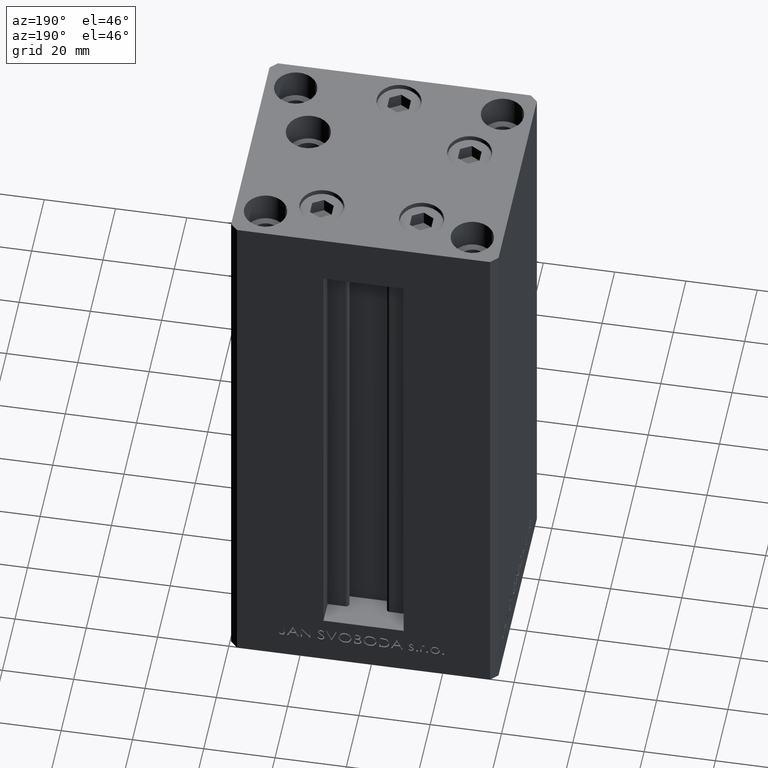
[diagram: clean part render]
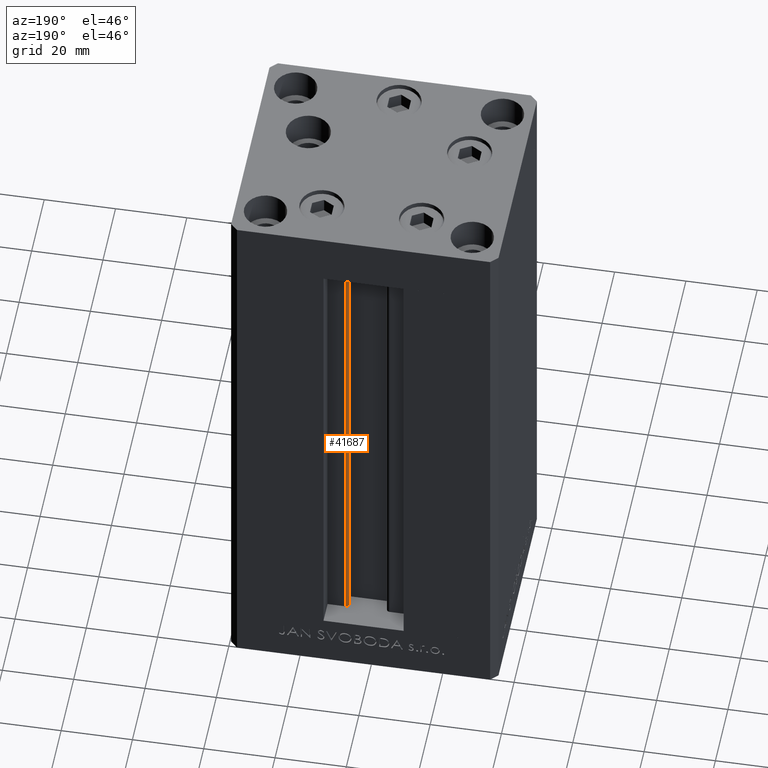
[diagram: same view with one face highlighted and labeled with its STEP entity id]
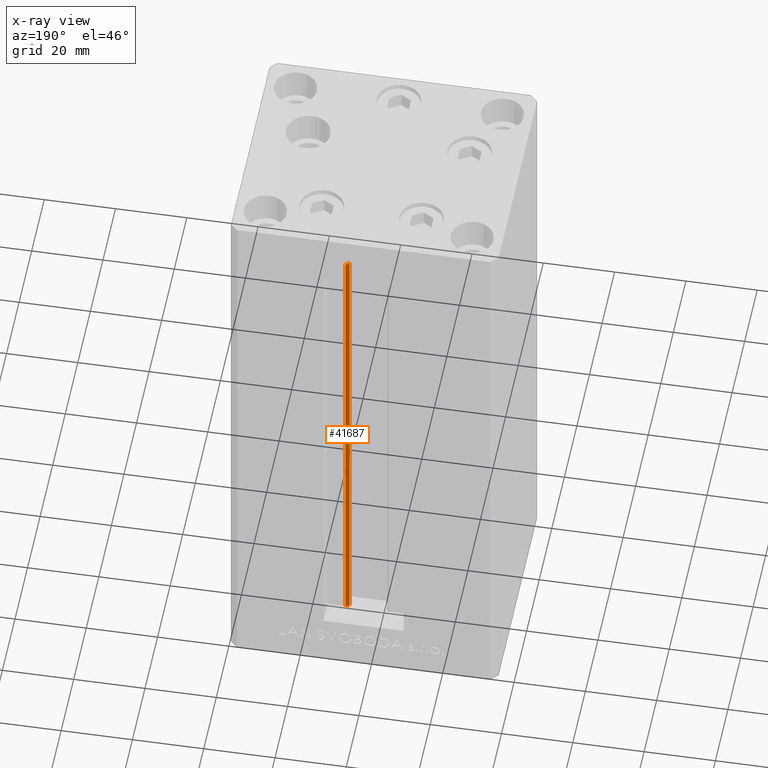
[diagram: x-ray of the same camera — body ghosted, the highlighted face saturated]
A machine part, auxiliary view. The second image highlights one B-rep face of the part: STEP entity #41687.
The next image is the same camera in x-ray: the body ghosted, the highlighted face saturated — about 0% of this face is hidden behind the body in this view.
In plain terms, the highlighted cylindrical surface (edge-blend (fillet) strip) has radius 0.9333 mm, axis along (0, 0, 1).
Its self-contained STEP definition (entity closure, byte-faithful):
#181 = DIRECTION ( 'NONE',  ( 1.000000000000000000, 0.000000000000000000, 0.000000000000000000 ) ) ;
#929 = CARTESIAN_POINT ( 'NONE',  ( 6.183333333334001480, 25.06666666666599141, 0.000000000000000000 ) ) ;
#1705 = EDGE_CURVE ( 'NONE', #24963, #31320, #23195, .T. ) ;
#3479 = AXIS2_PLACEMENT_3D ( 'NONE', #14260, #29382, #181 ) ;
#3924 = DIRECTION ( 'NONE',  ( -0.000000000000000000, -0.000000000000000000, -1.000000000000000000 ) ) ;
#5920 = EDGE_CURVE ( 'NONE', #19419, #24963, #43174, .T. ) ;
#7465 = EDGE_CURVE ( 'NONE', #19419, #38154, #41423, .T. ) ;
#8309 = ORIENTED_EDGE ( 'NONE', *, *, #1705, .T. ) ;
#11741 = AXIS2_PLACEMENT_3D ( 'NONE', #17107, #24069, #35210 ) ;
#13725 = ORIENTED_EDGE ( 'NONE', *, *, #31118, .F. ) ;
#14260 = CARTESIAN_POINT ( 'NONE',  ( 6.183333333334001480, 25.06666666666599141, 136.0000000000000000 ) ) ;
#14359 = VECTOR ( 'NONE', #36769, 1000.000000000000000 ) ;
#16074 = AXIS2_PLACEMENT_3D ( 'NONE', #929, #3924, #45483 ) ;
#17107 = CARTESIAN_POINT ( 'NONE',  ( 6.183333333334001480, 25.06666666666599141, 0.000000000000000000 ) ) ;
#19419 = VERTEX_POINT ( 'NONE', #43154 ) ;
#20869 = CARTESIAN_POINT ( 'NONE',  ( 5.375042956467947164, 24.59999999999899245, 0.000000000000000000 ) ) ;
#23195 = CIRCLE ( 'NONE', #3479, 0.9333333333340008142 ) ;
#24069 = DIRECTION ( 'NONE',  ( -0.000000000000000000, -0.000000000000000000, 1.000000000000000000 ) ) ;
#24963 = VERTEX_POINT ( 'NONE', #31674 ) ;
#26488 = EDGE_LOOP ( 'NONE', ( #13725, #41697, #26876, #8309 ) ) ;
#26876 = ORIENTED_EDGE ( 'NONE', *, *, #5920, .T. ) ;
#27039 = CYLINDRICAL_SURFACE ( 'NONE', #11741, 0.9333333333340008142 ) ;
#29382 = DIRECTION ( 'NONE',  ( 0.000000000000000000, 0.000000000000000000, -1.000000000000000000 ) ) ;
#31118 = EDGE_CURVE ( 'NONE', #38154, #31320, #44681, .T. ) ;
#31320 = VERTEX_POINT ( 'NONE', #44151 ) ;
#31674 = CARTESIAN_POINT ( 'NONE',  ( 5.375042956467948052, 24.59999999999899245, 136.0000000000000000 ) ) ;
#35210 = DIRECTION ( 'NONE',  ( 1.000000000000000000, 0.000000000000000000, 0.000000000000000000 ) ) ;
#36769 = DIRECTION ( 'NONE',  ( -0.000000000000000000, -0.000000000000000000, 1.000000000000000000 ) ) ;
#38154 = VERTEX_POINT ( 'NONE', #44446 ) ;
#39829 = VECTOR ( 'NONE', #42684, 1000.000000000000000 ) ;
#41423 = CIRCLE ( 'NONE', #16074, 0.9333333333340008142 ) ;
#41687 = ADVANCED_FACE ( 'NONE', ( #45604 ), #27039, .T. ) ;
#41697 = ORIENTED_EDGE ( 'NONE', *, *, #7465, .F. ) ;
#42684 = DIRECTION ( 'NONE',  ( -0.000000000000000000, -0.000000000000000000, 1.000000000000000000 ) ) ;
#43154 = CARTESIAN_POINT ( 'NONE',  ( 5.375042956467947164, 24.59999999999899245, 0.000000000000000000 ) ) ;
#43174 = LINE ( 'NONE', #20869, #39829 ) ;
#44151 = CARTESIAN_POINT ( 'NONE',  ( 6.183333333334001480, 25.99999999999999289, 136.0000000000000000 ) ) ;
#44446 = CARTESIAN_POINT ( 'NONE',  ( 6.183333333334001480, 25.99999999999999289, 0.000000000000000000 ) ) ;
#44681 = LINE ( 'NONE', #48625, #14359 ) ;
#45483 = DIRECTION ( 'NONE',  ( 1.000000000000000000, 0.000000000000000000, 0.000000000000000000 ) ) ;
#45604 = FACE_OUTER_BOUND ( 'NONE', #26488, .T. ) ;
#48625 = CARTESIAN_POINT ( 'NONE',  ( 6.183333333334001480, 25.99999999999999289, 0.000000000000000000 ) ) ;